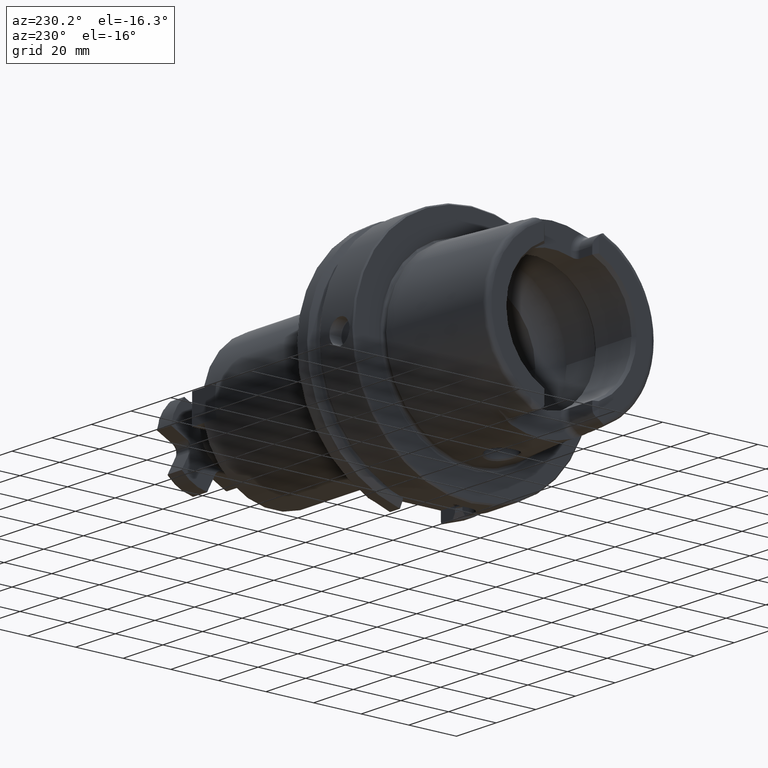
[diagram: clean part render]
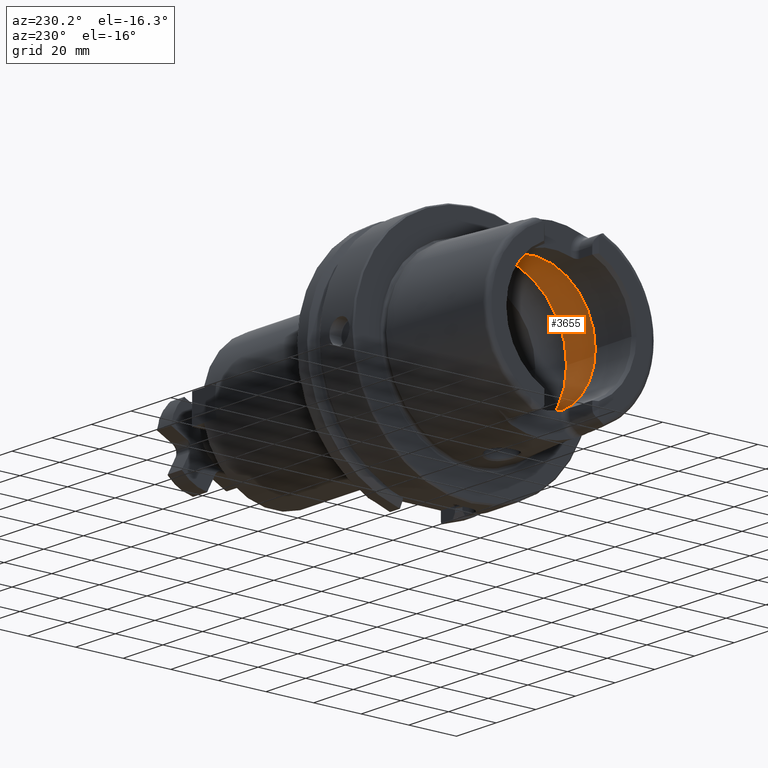
[diagram: same view with one face highlighted and labeled with its STEP entity id]
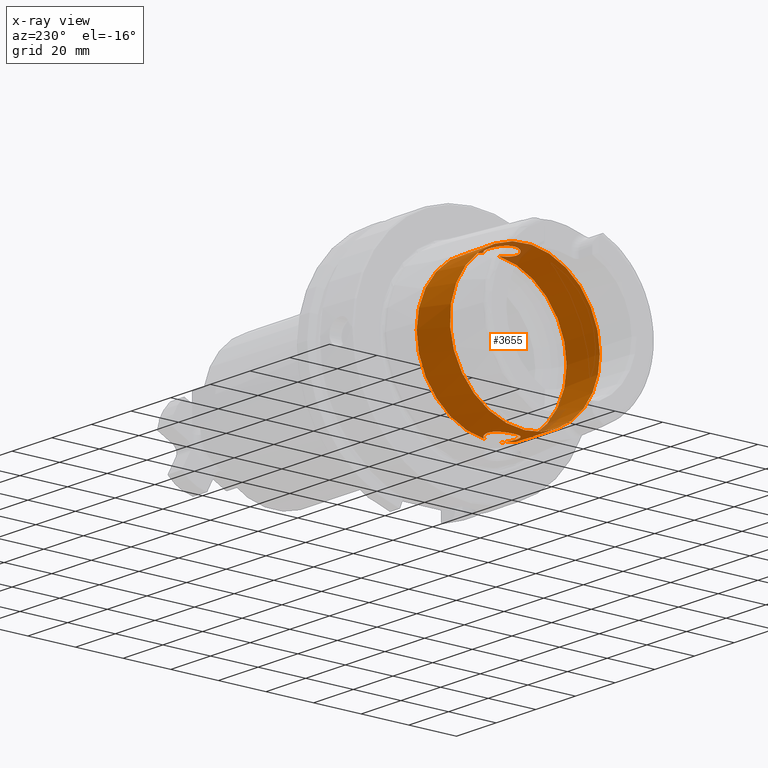
[diagram: x-ray of the same camera — body ghosted, the highlighted face saturated]
A machine part, auxiliary view. The second image highlights one B-rep face of the part: STEP entity #3655.
The next image is the same camera in x-ray: the body ghosted, the highlighted face saturated — about 4% of this face is hidden behind the body in this view.
In plain terms, the highlighted cylindrical surface (bore or boss wall) has radius 31.5 mm, axis along (-1, 0, 0).
Its self-contained STEP definition (entity closure, byte-faithful):
#534=B_SPLINE_CURVE_WITH_KNOTS('',3,(#6242,#6243,#6244,#6245,#6246,#6247,
#6248,#6249,#6250,#6251,#6252,#6253,#6254,#6255,#6256,#6257,#6258,#6259,
#6260,#6261,#6262,#6263,#6264,#6265,#6266,#6267,#6268,#6269,#6270,#6271,
#6272),.UNSPECIFIED.,.F.,.F.,(4,2,2,2,2,2,2,2,2,2,2,3,2,2,4),(-2.42966289251045,
-2.26609494287567,-2.03948128472637,-1.81286762657707,-1.58625396842777,
-1.35964031027847,-1.1330370617835,-0.906433813288535,-0.679830564793567,
-0.453227316298599,-0.226613658149299,0.,0.2266136581493,0.453227316298599,
0.616795265988555),.UNSPECIFIED.);
#539=B_SPLINE_CURVE_WITH_KNOTS('',3,(#6434,#6435,#6436,#6437,#6438,#6439,
#6440,#6441,#6442,#6443,#6444,#6445,#6446,#6447,#6448,#6449,#6450,#6451,
#6452,#6453,#6454,#6455,#6456,#6457,#6458,#6459,#6460,#6461,#6462,#6463,
#6464),.UNSPECIFIED.,.F.,.F.,(4,2,2,3,2,2,2,2,2,2,2,2,2,2,4),(-0.616795265933374,
-0.453227316298598,-0.226613658149299,0.,0.2266136581493,0.453227316298599,
0.679830564793567,0.906433813288535,1.1330370617835,1.35964031027847,1.58625396842777,
1.81286762657707,2.03948128472637,2.26609494287567,2.42966289256562),
 .UNSPECIFIED.);
#731=CYLINDRICAL_SURFACE('',#4070,31.5);
#824=FACE_OUTER_BOUND('',#1029,.T.);
#1029=EDGE_LOOP('',(#2854,#2855,#2856,#2857,#2858,#2859,#2860,#2861,#2862));
#1250=LINE('',#6480,#1448);
#1448=VECTOR('',#4722,31.5);
#1635=CIRCLE('',#4071,31.5);
#1636=CIRCLE('',#4072,31.5);
#1637=CIRCLE('',#4073,31.5);
#1638=CIRCLE('',#4074,31.5);
#1639=CIRCLE('',#4075,31.5);
#1916=VERTEX_POINT('',#6230);
#1917=VERTEX_POINT('',#6241);
#1920=VERTEX_POINT('',#6421);
#1922=VERTEX_POINT('',#6433);
#1923=VERTEX_POINT('',#6477);
#1924=VERTEX_POINT('',#6479);
#1925=VERTEX_POINT('',#6481);
#2267=EDGE_CURVE('',#1917,#1916,#534,.T.);
#2273=EDGE_CURVE('',#1922,#1920,#539,.T.);
#2276=EDGE_CURVE('',#1923,#1920,#1635,.T.);
#2277=EDGE_CURVE('',#1923,#1924,#1250,.T.);
#2278=EDGE_CURVE('',#1924,#1925,#1636,.T.);
#2279=EDGE_CURVE('',#1925,#1924,#1637,.T.);
#2280=EDGE_CURVE('',#1917,#1923,#1638,.T.);
#2281=EDGE_CURVE('',#1922,#1916,#1639,.T.);
#2854=ORIENTED_EDGE('',*,*,#2273,.T.);
#2855=ORIENTED_EDGE('',*,*,#2276,.F.);
#2856=ORIENTED_EDGE('',*,*,#2277,.T.);
#2857=ORIENTED_EDGE('',*,*,#2278,.T.);
#2858=ORIENTED_EDGE('',*,*,#2279,.T.);
#2859=ORIENTED_EDGE('',*,*,#2277,.F.);
#2860=ORIENTED_EDGE('',*,*,#2280,.F.);
#2861=ORIENTED_EDGE('',*,*,#2267,.T.);
#2862=ORIENTED_EDGE('',*,*,#2281,.F.);
#3655=ADVANCED_FACE('',(#824),#731,.F.);
#4070=AXIS2_PLACEMENT_3D('',#6476,#4718,#4719);
#4071=AXIS2_PLACEMENT_3D('',#6478,#4720,#4721);
#4072=AXIS2_PLACEMENT_3D('',#6482,#4723,#4724);
#4073=AXIS2_PLACEMENT_3D('',#6483,#4725,#4726);
#4074=AXIS2_PLACEMENT_3D('',#6484,#4727,#4728);
#4075=AXIS2_PLACEMENT_3D('',#6485,#4729,#4730);
#4718=DIRECTION('center_axis',(-1.,0.,0.));
#4719=DIRECTION('ref_axis',(0.,1.,0.));
#4720=DIRECTION('center_axis',(-1.,0.,0.));
#4721=DIRECTION('ref_axis',(0.,0.,1.));
#4722=DIRECTION('',(-1.,0.,0.));
#4723=DIRECTION('center_axis',(-1.,0.,0.));
#4724=DIRECTION('ref_axis',(0.,0.,1.));
#4725=DIRECTION('center_axis',(-1.,0.,0.));
#4726=DIRECTION('ref_axis',(0.,0.,1.));
#4727=DIRECTION('center_axis',(-1.,0.,0.));
#4728=DIRECTION('ref_axis',(0.,0.,1.));
#4729=DIRECTION('center_axis',(-1.,0.,0.));
#4730=DIRECTION('ref_axis',(0.,0.,1.));
#6230=CARTESIAN_POINT('',(-9.74679434480896,2.89893607109041,-31.3663222207471));
#6241=CARTESIAN_POINT('',(-9.74679434480896,-2.89893607109041,-31.3663222207471));
#6242=CARTESIAN_POINT('Ctrl Pts',(-9.74679434480898,-2.8989360710904,-31.3663222207471));
#6243=CARTESIAN_POINT('Ctrl Pts',(-10.0245557799842,-3.40227174537722,-31.3198029657389));
#6244=CARTESIAN_POINT('Ctrl Pts',(-10.3735944692601,-3.85887584349869,-31.2651415110221));
#6245=CARTESIAN_POINT('Ctrl Pts',(-11.289042660848,-4.77432403508655,-31.140708727458));
#6246=CARTESIAN_POINT('Ctrl Pts',(-11.9624834305428,-5.23577180141274,-31.0633803744766));
#6247=CARTESIAN_POINT('Ctrl Pts',(-13.4401908644727,-5.84865855662958,-30.9538382316308));
#6248=CARTESIAN_POINT('Ctrl Pts',(-14.2446211395023,-6.00000000000001,-30.9232921921325));
#6249=CARTESIAN_POINT('Ctrl Pts',(-15.7553788604977,-6.00000000000001,-30.9232921921325));
#6250=CARTESIAN_POINT('Ctrl Pts',(-16.5598091355273,-5.84865855662958,-30.9538382316308));
#6251=CARTESIAN_POINT('Ctrl Pts',(-18.0375165694572,-5.23577180141275,-31.0633803744766));
#6252=CARTESIAN_POINT('Ctrl Pts',(-18.710957339152,-4.77432403508655,-31.140708727458));
#6253=CARTESIAN_POINT('Ctrl Pts',(-19.7742996118461,-3.71098176239249,-31.2852440928545));
#6254=CARTESIAN_POINT('Ctrl Pts',(-20.2357665181958,-3.03753058698362,-31.3619556484746));
#6255=CARTESIAN_POINT('Ctrl Pts',(-20.8486671603361,-1.55978711209124,-31.4700797313679));
#6256=CARTESIAN_POINT('Ctrl Pts',(-21.,-0.755344161649895,-31.5));
#6257=CARTESIAN_POINT('Ctrl Pts',(-21.,0.755344161649892,-31.5));
#6258=CARTESIAN_POINT('Ctrl Pts',(-20.8486671603361,1.55978711209124,-31.4700797313679));
#6259=CARTESIAN_POINT('Ctrl Pts',(-20.2357665181958,3.03753058698362,-31.3619556484746));
#6260=CARTESIAN_POINT('Ctrl Pts',(-19.7742996118461,3.71098176239249,-31.2852440928545));
#6261=CARTESIAN_POINT('Ctrl Pts',(-18.710957339152,4.77432403508655,-31.140708727458));
#6262=CARTESIAN_POINT('Ctrl Pts',(-18.0375165694572,5.23577180141274,-31.0633803744766));
#6263=CARTESIAN_POINT('Ctrl Pts',(-16.5598091355273,5.84865855662958,-30.9538382316308));
#6264=CARTESIAN_POINT('Ctrl Pts',(-15.7553788604977,6.00000000000001,-30.9232921921325));
#6265=CARTESIAN_POINT('Ctrl Pts',(-15.,6.00000000000001,-30.9232921921325));
#6266=CARTESIAN_POINT('Ctrl Pts',(-14.2446211395023,6.00000000000001,-30.9232921921325));
#6267=CARTESIAN_POINT('Ctrl Pts',(-13.4401908644727,5.84865855662958,-30.9538382316308));
#6268=CARTESIAN_POINT('Ctrl Pts',(-11.9624834305428,5.23577180141274,-31.0633803744766));
#6269=CARTESIAN_POINT('Ctrl Pts',(-11.289042660848,4.77432403508655,-31.140708727458));
#6270=CARTESIAN_POINT('Ctrl Pts',(-10.3735944691306,3.85887584336922,-31.2651415110397));
#6271=CARTESIAN_POINT('Ctrl Pts',(-10.0245557801354,3.40227174565105,-31.3198029657135));
#6272=CARTESIAN_POINT('Ctrl Pts',(-9.74679434480898,2.8989360710904,-31.3663222207471));
#6421=CARTESIAN_POINT('',(-9.74679434480896,-2.89893607109042,31.3663222207471));
#6433=CARTESIAN_POINT('',(-9.74679434480896,2.89893607109042,31.3663222207471));
#6434=CARTESIAN_POINT('Ctrl Pts',(-9.74679434480897,2.89893607109041,31.3663222207471));
#6435=CARTESIAN_POINT('Ctrl Pts',(-10.0245557799842,3.40227174537723,31.3198029657389));
#6436=CARTESIAN_POINT('Ctrl Pts',(-10.3735944692601,3.85887584349869,31.2651415110221));
#6437=CARTESIAN_POINT('Ctrl Pts',(-11.289042660848,4.77432403508655,31.140708727458));
#6438=CARTESIAN_POINT('Ctrl Pts',(-11.9624834305428,5.23577180141274,31.0633803744766));
#6439=CARTESIAN_POINT('Ctrl Pts',(-13.4401908644727,5.84865855662958,30.9538382316308));
#6440=CARTESIAN_POINT('Ctrl Pts',(-14.2446211395023,6.00000000000001,30.9232921921325));
#6441=CARTESIAN_POINT('Ctrl Pts',(-15.,6.00000000000001,30.9232921921325));
#6442=CARTESIAN_POINT('Ctrl Pts',(-15.7553788604977,6.00000000000001,30.9232921921325));
#6443=CARTESIAN_POINT('Ctrl Pts',(-16.5598091355273,5.84865855662958,30.9538382316308));
#6444=CARTESIAN_POINT('Ctrl Pts',(-18.0375165694572,5.23577180141274,31.0633803744766));
#6445=CARTESIAN_POINT('Ctrl Pts',(-18.710957339152,4.77432403508655,31.140708727458));
#6446=CARTESIAN_POINT('Ctrl Pts',(-19.7742996118461,3.71098176239249,31.2852440928545));
#6447=CARTESIAN_POINT('Ctrl Pts',(-20.2357665181958,3.03753058698362,31.3619556484746));
#6448=CARTESIAN_POINT('Ctrl Pts',(-20.8486671603361,1.55978711209124,31.4700797313679));
#6449=CARTESIAN_POINT('Ctrl Pts',(-21.,0.755344161649892,31.5));
#6450=CARTESIAN_POINT('Ctrl Pts',(-21.,-0.755344161649894,31.5));
#6451=CARTESIAN_POINT('Ctrl Pts',(-20.8486671603361,-1.55978711209124,31.4700797313679));
#6452=CARTESIAN_POINT('Ctrl Pts',(-20.2357665181958,-3.03753058698362,31.3619556484746));
#6453=CARTESIAN_POINT('Ctrl Pts',(-19.7742996118461,-3.71098176239249,31.2852440928545));
#6454=CARTESIAN_POINT('Ctrl Pts',(-18.710957339152,-4.77432403508655,31.140708727458));
#6455=CARTESIAN_POINT('Ctrl Pts',(-18.0375165694572,-5.23577180141274,31.0633803744766));
#6456=CARTESIAN_POINT('Ctrl Pts',(-16.5598091355273,-5.84865855662958,30.9538382316308));
#6457=CARTESIAN_POINT('Ctrl Pts',(-15.7553788604977,-6.00000000000001,30.9232921921325));
#6458=CARTESIAN_POINT('Ctrl Pts',(-14.2446211395023,-6.00000000000001,30.9232921921325));
#6459=CARTESIAN_POINT('Ctrl Pts',(-13.4401908644727,-5.84865855662958,30.9538382316308));
#6460=CARTESIAN_POINT('Ctrl Pts',(-11.9624834305428,-5.23577180141274,31.0633803744766));
#6461=CARTESIAN_POINT('Ctrl Pts',(-11.289042660848,-4.77432403508655,31.140708727458));
#6462=CARTESIAN_POINT('Ctrl Pts',(-10.3735944691306,-3.85887584336922,31.2651415110397));
#6463=CARTESIAN_POINT('Ctrl Pts',(-10.0245557801353,-3.40227174565106,31.3198029657135));
#6464=CARTESIAN_POINT('Ctrl Pts',(-9.74679434480897,-2.89893607109041,31.3663222207471));
#6476=CARTESIAN_POINT('Origin',(-18.1430342013226,0.,0.));
#6477=CARTESIAN_POINT('',(-9.74679434480896,-31.5,3.85763741731416E-15));
#6478=CARTESIAN_POINT('Origin',(-9.74679434480896,0.,0.));
#6479=CARTESIAN_POINT('',(-26.5392740578363,-31.5,3.85763741731416E-15));
#6480=CARTESIAN_POINT('',(-18.1430342013226,-31.5,3.85763741731416E-15));
#6481=CARTESIAN_POINT('',(-26.5392740578363,-3.85763741731416E-15,-31.5));
#6482=CARTESIAN_POINT('Origin',(-26.5392740578363,0.,0.));
#6483=CARTESIAN_POINT('Origin',(-26.5392740578363,0.,0.));
#6484=CARTESIAN_POINT('Origin',(-9.74679434480896,0.,0.));
#6485=CARTESIAN_POINT('Origin',(-9.74679434480896,0.,0.));